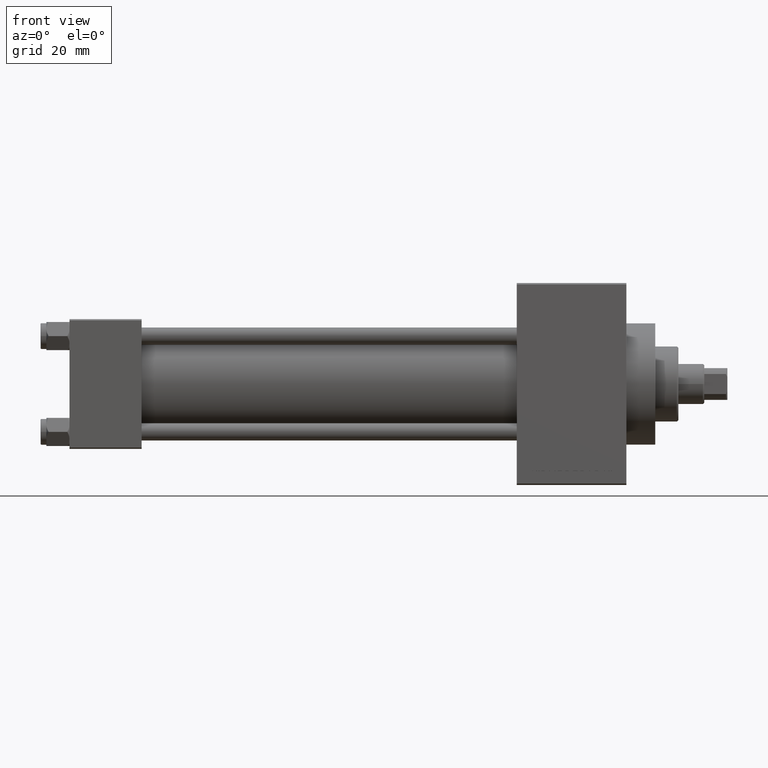
[diagram: clean part render]
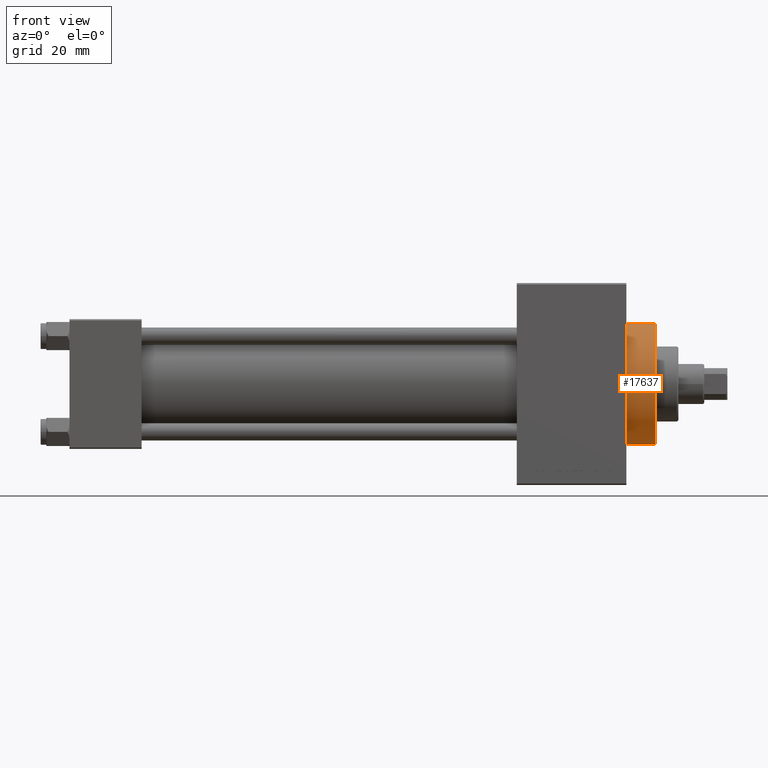
[diagram: same view with one face highlighted and labeled with its STEP entity id]
A machine part, front view. The second image highlights one B-rep face of the part: STEP entity #17637.
In plain terms, the highlighted cylindrical surface (partial cylindrical patch) has radius 21 mm, axis along (-1, -0, -0).
Its self-contained STEP definition (entity closure, byte-faithful):
#48 = ORIENTED_EDGE ( 'NONE', *, *, #25962, .T. ) ;
#430 = FACE_OUTER_BOUND ( 'NONE', #38161, .T. ) ;
#1297 = VECTOR ( 'NONE', #8723, 1000.000000000000000 ) ;
#3700 = CARTESIAN_POINT ( 'NONE',  ( 203.0000000000000000, 2.571758278209441661E-15, -21.00000000000000000 ) ) ;
#4303 = VERTEX_POINT ( 'NONE', #48090 ) ;
#7960 = VECTOR ( 'NONE', #34143, 1000.000000000000000 ) ;
#8651 = EDGE_CURVE ( 'NONE', #23350, #4303, #42372, .T. ) ;
#8723 = DIRECTION ( 'NONE',  ( -1.000000000000000000, -0.000000000000000000, -0.000000000000000000 ) ) ;
#9101 = VERTEX_POINT ( 'NONE', #40523 ) ;
#10371 = CARTESIAN_POINT ( 'NONE',  ( 193.0000000000000000, 0.000000000000000000, 21.00000000000000000 ) ) ;
#11881 = CYLINDRICAL_SURFACE ( 'NONE', #15351, 21.00000000000000000 ) ;
#12951 = LINE ( 'NONE', #42926, #1297 ) ;
#13943 = AXIS2_PLACEMENT_3D ( 'NONE', #14644, #45100, #46082 ) ;
#14644 = CARTESIAN_POINT ( 'NONE',  ( 193.0000000000000000, 0.000000000000000000, 0.000000000000000000 ) ) ;
#15351 = AXIS2_PLACEMENT_3D ( 'NONE', #45332, #19126, #23116 ) ;
#15466 = AXIS2_PLACEMENT_3D ( 'NONE', #46922, #27963, #20465 ) ;
#17637 = ADVANCED_FACE ( 'NONE', ( #430 ), #11881, .T. ) ;
#17759 = ORIENTED_EDGE ( 'NONE', *, *, #8651, .F. ) ;
#18729 = CIRCLE ( 'NONE', #13943, 21.00000000000000000 ) ;
#19126 = DIRECTION ( 'NONE',  ( -1.000000000000000000, -0.000000000000000000, -0.000000000000000000 ) ) ;
#19861 = EDGE_CURVE ( 'NONE', #9101, #23350, #45740, .T. ) ;
#20465 = DIRECTION ( 'NONE',  ( 0.000000000000000000, 0.000000000000000000, -1.000000000000000000 ) ) ;
#23116 = DIRECTION ( 'NONE',  ( 0.000000000000000000, 0.000000000000000000, 1.000000000000000000 ) ) ;
#23350 = VERTEX_POINT ( 'NONE', #43000 ) ;
#23698 = EDGE_CURVE ( 'NONE', #45707, #4303, #18729, .T. ) ;
#25962 = EDGE_CURVE ( 'NONE', #9101, #45707, #12951, .T. ) ;
#27053 = ORIENTED_EDGE ( 'NONE', *, *, #19861, .F. ) ;
#27963 = DIRECTION ( 'NONE',  ( 1.000000000000000000, 0.000000000000000000, 0.000000000000000000 ) ) ;
#34143 = DIRECTION ( 'NONE',  ( -1.000000000000000000, -0.000000000000000000, -0.000000000000000000 ) ) ;
#38161 = EDGE_LOOP ( 'NONE', ( #17759, #27053, #48, #48765 ) ) ;
#40523 = CARTESIAN_POINT ( 'NONE',  ( 203.0000000000000000, 0.000000000000000000, 21.00000000000000000 ) ) ;
#42372 = LINE ( 'NONE', #3700, #7960 ) ;
#42926 = CARTESIAN_POINT ( 'NONE',  ( 203.0000000000000000, 0.000000000000000000, 21.00000000000000000 ) ) ;
#43000 = CARTESIAN_POINT ( 'NONE',  ( 203.0000000000000000, 2.571758278209441661E-15, -21.00000000000000000 ) ) ;
#45100 = DIRECTION ( 'NONE',  ( 1.000000000000000000, 0.000000000000000000, 0.000000000000000000 ) ) ;
#45332 = CARTESIAN_POINT ( 'NONE',  ( 203.0000000000000000, 0.000000000000000000, 0.000000000000000000 ) ) ;
#45707 = VERTEX_POINT ( 'NONE', #10371 ) ;
#45740 = CIRCLE ( 'NONE', #15466, 21.00000000000000000 ) ;
#46082 = DIRECTION ( 'NONE',  ( 0.000000000000000000, 0.000000000000000000, -1.000000000000000000 ) ) ;
#46922 = CARTESIAN_POINT ( 'NONE',  ( 203.0000000000000000, 0.000000000000000000, 0.000000000000000000 ) ) ;
#48090 = CARTESIAN_POINT ( 'NONE',  ( 193.0000000000000000, 2.571758278209441661E-15, -21.00000000000000000 ) ) ;
#48765 = ORIENTED_EDGE ( 'NONE', *, *, #23698, .T. ) ;